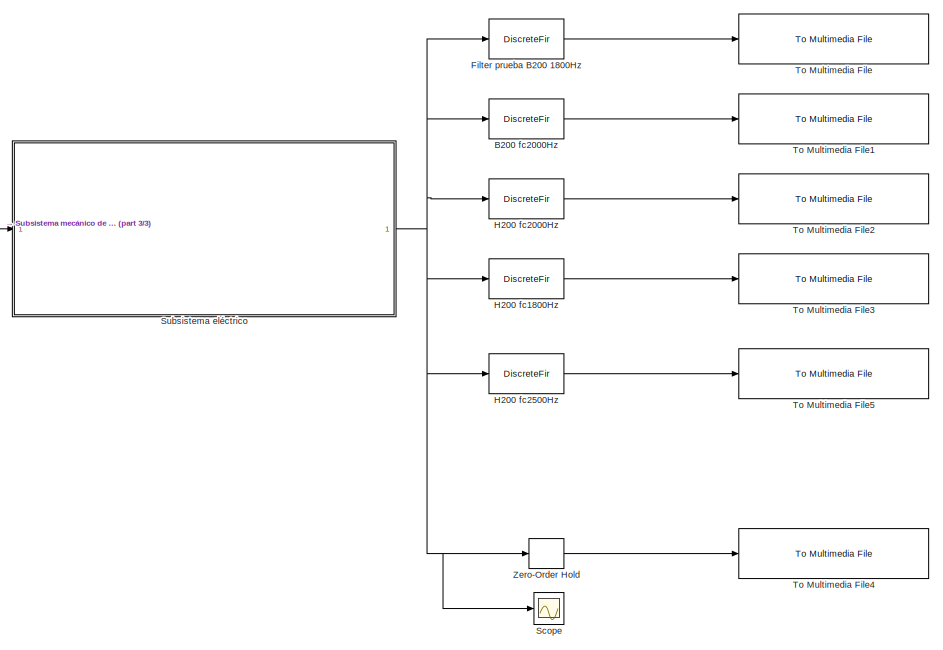
[diagram: root canvas - part 1/3, right side, full height]
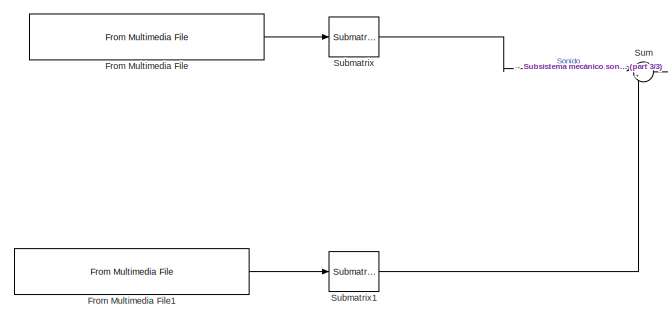
[diagram: root canvas - part 2/3, middle left region]
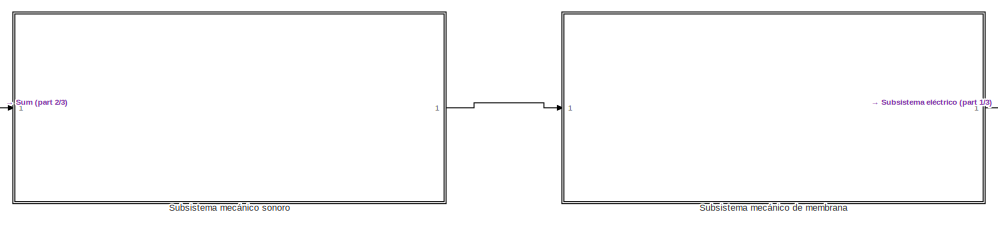
[diagram: root canvas - part 3/3, central region]
MODEL slx_13a59ccfc5f7
KIND model
CONFIG AbsTol = auto
CONFIG EnableMultiTasking = off
CONFIG FixedStep = auto
CONFIG MaxStep = auto
CONFIG MinStep = auto
CONFIG RelTol = 1e-3
CONFIG SampleTimeConstraint = Unconstrained
CONFIG SolverName = VariableStepAuto
CONFIG StartTime = 0.0
CONFIG StopTime = 10.0
BLOCK [DiscreteFir] B200 fc2000Hz
  Coefficients = [0 1.83057635375754512e-08 3.9529007824523685e-07 1.55910825338038789e-06 3.76770700347280875e-06 7.00736329359619744e-06 1.09301472211687974e-05 1.4844315408215566e-05 1.77655305137500905e-05 1.85292010987128519e-05 1.59558880344514605e-05 9.05351667491030031e-06 -2.7669734919763228e-06 -1.94909778736170261e-05 -4.03452156527393192e-05 -6.37177359122503275e-05 -8.71772893596150811e-05 -0.00010760...<+4309ch>
  InputPortMap = u0
  OutputPortMap = o0
  Tag = BlockMethodSubSystem
BLOCK [DiscreteFir] Filter prueba B200 1800Hz
  Coefficients = [0 7.24652832356188521e-08 -5.23782624738498232e-21 -6.675282150919552e-07 -2.32546562504132773e-06 -5.22190617674366559e-06 -9.37733204941596823e-06 -1.4527706576905175e-05 -2.01007077336600721e-05 -2.52320533236906118e-05 -2.88252060978315019e-05 -2.96534017283023188e-05 -2.6498240094570269e-05 -1.83144121829550524e-05 -4.40593566309191823e-06 1.54040110773000882e-05 4.06295112706107006e-05 7.00...<+4321ch>
  InputPortMap = u0
  OutputPortMap = o0
  Tag = BlockMethodSubSystem
BLOCK [Reference] From Multimedia File  REF=dspvision/From Multimedia File
  LibrarySourceBlock = audiosources/From Multimedia File
  SourceBlock = dspvision/From Multimedia File
  SourceType = From Multimedia File
BLOCK [Reference] From Multimedia File1  REF=dspvision/From Multimedia File
  LibrarySourceBlock = audiosources/From Multimedia File
  SourceBlock = dspvision/From Multimedia File
  SourceType = From Multimedia File
BLOCK [DiscreteFir] H200 fc1800Hz
  Coefficients = [0.000125144152077349865 6.55264979454243913e-05 -1.1928449595075705e-18 -6.83901465280600042e-05 -0.000136269006698061518 -0.000199973113165685608 -0.000255629840022287083 -0.000299287833587119601 -0.000327105580066830188 -0.000335597355428931708 -0.000321926737929569169 -0.000284228564314821627 -0.000221931780473618134 -0.000136049177898820524 -2.93965026581621075e-05 9.32963704991064338e-05 0.0...<+4351ch>
  InputPortMap = u0
  OutputPortMap = o0
  Tag = BlockMethodSubSystem
BLOCK [DiscreteFir] H200 fc2000Hz
  Coefficients = [-5.56928887965323996e-05 1.65011438245537004e-05 8.97404129389855278e-05 0.000159235323802665862 0.00022009162972417537 0.000267507778546905491 0.000297028076662561244 0.00030485366062257119 0.000288200030555739591 0.000245675511305965986 0.000177641669329940406 8.6506699720296273e-05 -2.31018469780051173e-05 -0.00014433637834937926 -0.000268342086729793134 -0.000384707364236210015 -0.00048215215...<+4331ch>
  InputPortMap = u0
  OutputPortMap = o0
  Tag = BlockMethodSubSystem
BLOCK [DiscreteFir] H200 fc2500Hz
  Coefficients = [-0.000222219654175347933 -0.00016713260248594442 -8.98386782436484487e-05 1.91697880446349961e-06 9.84938717358789783e-05 0.000189065394371969089 0.000262527463652970051 0.000308585790394740977 0.000318960639621033353 0.000288600843402469522 0.000216755433258305189 0.000107723331772103536 -2.89001256335634088e-05 -0.000178629125966477619 -0.000323227645559331889 -0.000442567896166785033 -0.000517...<+4342ch>
  InputPortMap = u0
  OutputPortMap = o0
  Tag = BlockMethodSubSystem
BLOCK [Scope] Scope
  Floating = off
  NumInputPorts = 1
  ScopeSpecificationString = Simulink.scopes.TimeScopeBlockCfg('CurrentConfiguration', extmgr.ConfigurationSet(extmgr.Configuration('Core','General UI',true),extmgr.Configuration('Core','Source UI',true),extmgr.Configuration('Sources','WiredSimulink',true),extmgr.Configuration('Visuals','Time Domain',true,'SerializedDisplays',{struct('MinYLimReal','-1.84106','MaxYLimReal','1.83382','YLabelReal','','MinYLimMag','0.00000','MaxY...<+1366ch>
BLOCK [Reference] Submatrix  REF=matrix_library/Submatrix
  LibrarySourceBlock = simulink/Matrix\nOperations/Submatrix
  SourceBlock = matrix_library/Submatrix
  SourceType = Submatrix
BLOCK [Reference] Submatrix1  REF=matrix_library/Submatrix
  LibrarySourceBlock = simulink/Matrix\nOperations/Submatrix
  SourceBlock = matrix_library/Submatrix
  SourceType = Submatrix
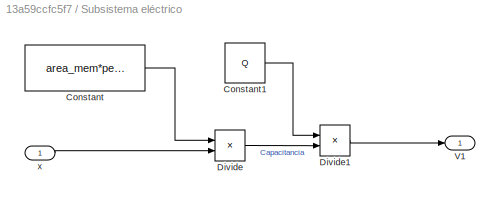
BLOCK [SubSystem] Subsistema eléctrico
BLOCK [Constant] Subsistema eléctrico/Constant
  Value = area_mem*perm
BLOCK [Constant] Subsistema eléctrico/Constant1
  Value = Q
BLOCK [Product] Subsistema eléctrico/Divide
  Inputs = */
BLOCK [Product] Subsistema eléctrico/Divide1
  Inputs = */
BLOCK [Outport] Subsistema eléctrico/V1
BLOCK [Inport] Subsistema eléctrico/x
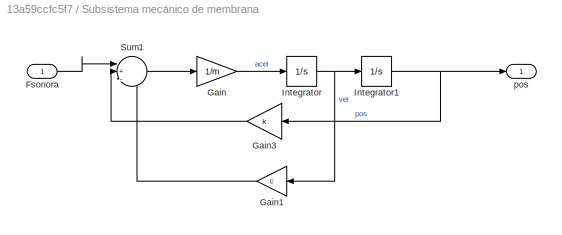
BLOCK [SubSystem] Subsistema mecánico de membrana
BLOCK [Inport] Subsistema mecánico de membrana/Fsonora
BLOCK [Gain] Subsistema mecánico de membrana/Gain
  Gain = 1/m
BLOCK [Gain] Subsistema mecánico de membrana/Gain1
  Gain = c
BLOCK [Gain] Subsistema mecánico de membrana/Gain3
  Gain = k
BLOCK [Integrator] Subsistema mecánico de membrana/Integrator
BLOCK [Integrator] Subsistema mecánico de membrana/Integrator1
BLOCK [Sum] Subsistema mecánico de membrana/Sum1
  Inputs = |+--
BLOCK [Outport] Subsistema mecánico de membrana/pos
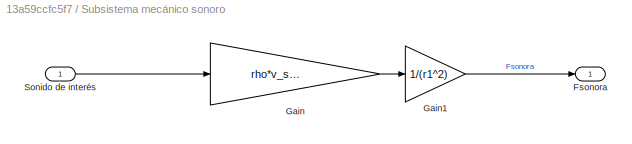
BLOCK [SubSystem] Subsistema mecánico sonoro
BLOCK [Outport] Subsistema mecánico sonoro/Fsonora
BLOCK [Gain] Subsistema mecánico sonoro/Gain
  Gain = rho*v_sonido*(area_mem)
BLOCK [Gain] Subsistema mecánico sonoro/Gain1
  Gain = 1/(r1^2)
BLOCK [Inport] Subsistema mecánico sonoro/Sonido de interés
BLOCK [Sum] Sum
  Inputs = |++
BLOCK [Reference] To Multimedia File  REF=dspvision/To Multimedia File
  LibrarySourceBlock = audiosinks/To Multimedia File
  SourceBlock = dspvision/To Multimedia File
  SourceType = To Multimedia File
BLOCK [Reference] To Multimedia File1  REF=dspvision/To Multimedia File
  LibrarySourceBlock = audiosinks/To Multimedia File
  SourceBlock = dspvision/To Multimedia File
  SourceType = To Multimedia File
BLOCK [Reference] To Multimedia File2  REF=dspvision/To Multimedia File
  LibrarySourceBlock = audiosinks/To Multimedia File
  SourceBlock = dspvision/To Multimedia File
  SourceType = To Multimedia File
BLOCK [Reference] To Multimedia File3  REF=dspvision/To Multimedia File
  LibrarySourceBlock = audiosinks/To Multimedia File
  SourceBlock = dspvision/To Multimedia File
  SourceType = To Multimedia File
BLOCK [Reference] To Multimedia File4  REF=dspvision/To Multimedia File
  LibrarySourceBlock = audiosinks/To Multimedia File
  SourceBlock = dspvision/To Multimedia File
  SourceType = To Multimedia File
BLOCK [Reference] To Multimedia File5  REF=dspvision/To Multimedia File
  LibrarySourceBlock = audiosinks/To Multimedia File
  SourceBlock = dspvision/To Multimedia File
  SourceType = To Multimedia File
BLOCK [ZeroOrderHold] Zero-Order Hold
  SampleTime = 1/44100
LINE B200 fc2000Hz:1 -> To Multimedia File1:1
LINE Filter prueba B200 1800Hz:1 -> To Multimedia File:1
LINE From Multimedia File1:1 -> Submatrix1:1
LINE From Multimedia File:1 -> Submatrix:1
LINE H200 fc1800Hz:1 -> To Multimedia File3:1
LINE H200 fc2000Hz:1 -> To Multimedia File2:1
LINE H200 fc2500Hz:1 -> To Multimedia File5:1
LINE Submatrix1:1 -> Sum:2
LINE Submatrix:1 -> Sum:1
LINE Subsistema eléctrico/Constant1:1 -> Subsistema eléctrico/Divide1:1
LINE Subsistema eléctrico/Constant:1 -> Subsistema eléctrico/Divide:1
LINE Subsistema eléctrico/Divide1:1 -> Subsistema eléctrico/V1:1
LINE Subsistema eléctrico/Divide:1 -> Subsistema eléctrico/Divide1:2
LINE Subsistema eléctrico/x:1 -> Subsistema eléctrico/Divide:2
NET Subsistema eléctrico:1 -> B200 fc2000Hz:1, Filter prueba B200 1800Hz:1, H200 fc1800Hz:1, H200 fc2000Hz:1, H200 fc2500Hz:1, Scope:1, Zero-Order Hold:1
LINE Subsistema mecánico de membrana/Fsonora:1 -> Subsistema mecánico de membrana/Sum1:1
LINE Subsistema mecánico de membrana/Gain1:1 -> Subsistema mecánico de membrana/Sum1:3
LINE Subsistema mecánico de membrana/Gain3:1 -> Subsistema mecánico de membrana/Sum1:2
LINE Subsistema mecánico de membrana/Gain:1 -> Subsistema mecánico de membrana/Integrator:1
NET Subsistema mecánico de membrana/Integrator1:1 -> Subsistema mecánico de membrana/Gain3:1, Subsistema mecánico de membrana/pos:1
NET Subsistema mecánico de membrana/Integrator:1 -> Subsistema mecánico de membrana/Gain1:1, Subsistema mecánico de membrana/Integrator1:1
LINE Subsistema mecánico de membrana/Sum1:1 -> Subsistema mecánico de membrana/Gain:1
LINE Subsistema mecánico de membrana:1 -> Subsistema eléctrico:1
LINE Subsistema mecánico sonoro/Gain1:1 -> Subsistema mecánico sonoro/Fsonora:1
LINE Subsistema mecánico sonoro/Gain:1 -> Subsistema mecánico sonoro/Gain1:1
LINE Subsistema mecánico sonoro/Sonido de interés:1 -> Subsistema mecánico sonoro/Gain:1
LINE Subsistema mecánico sonoro:1 -> Subsistema mecánico de membrana:1
LINE Sum:1 -> Subsistema mecánico sonoro:1
LINE Zero-Order Hold:1 -> To Multimedia File4:1
note: NET lines group one-source signal fan-out (src -> all destinations, sorted); 1:1 wires keep LINE
